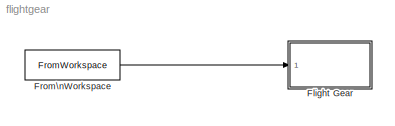
MODEL flightgear
KIND model
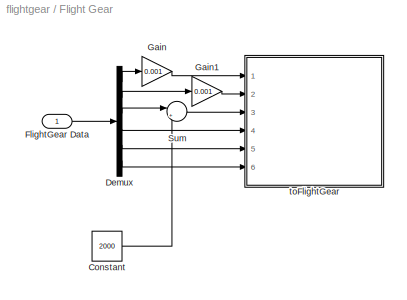
BLOCK [SubSystem] Flight Gear
  FunctionWithSeparateData = off
  MaskHideContents = off
  MinAlgLoopOccurrences = off
  Opaque = off
  Ports = [1]
  PropExecContextOutsideSubsystem = off
  RTWSystemCode = Auto
  RequestExecContextInheritance = off
  SID = 2
BLOCK [Constant] Flight Gear/Constant
  SID = 88
  Value = 2000
BLOCK [Demux] Flight Gear/Demux
  DisplayOption = bar
  Outputs = 6
  Ports = [1, 6]
  SID = 87
BLOCK [Inport] Flight Gear/FlightGear Data
  IconDisplay = Port number
  SID = 3
BLOCK [Gain] Flight Gear/Gain
  Gain = 0.001
  OutDataTypeStr = Inherit: Inherit via internal rule
  ParamDataTypeStr = Inherit: Inherit via internal rule
  SID = 90
  SaturateOnIntegerOverflow = off
BLOCK [Gain] Flight Gear/Gain1
  Gain = 0.001
  OutDataTypeStr = Inherit: Inherit via internal rule
  ParamDataTypeStr = Inherit: Inherit via internal rule
  SID = 91
  SaturateOnIntegerOverflow = off
BLOCK [Sum] Flight Gear/Sum
  IconShape = round
  InputSameDT = off
  Inputs = |++
  OutDataTypeStr = Inherit: Inherit via internal rule
  Ports = [2, 1]
  SID = 89
  SaturateOnIntegerOverflow = off
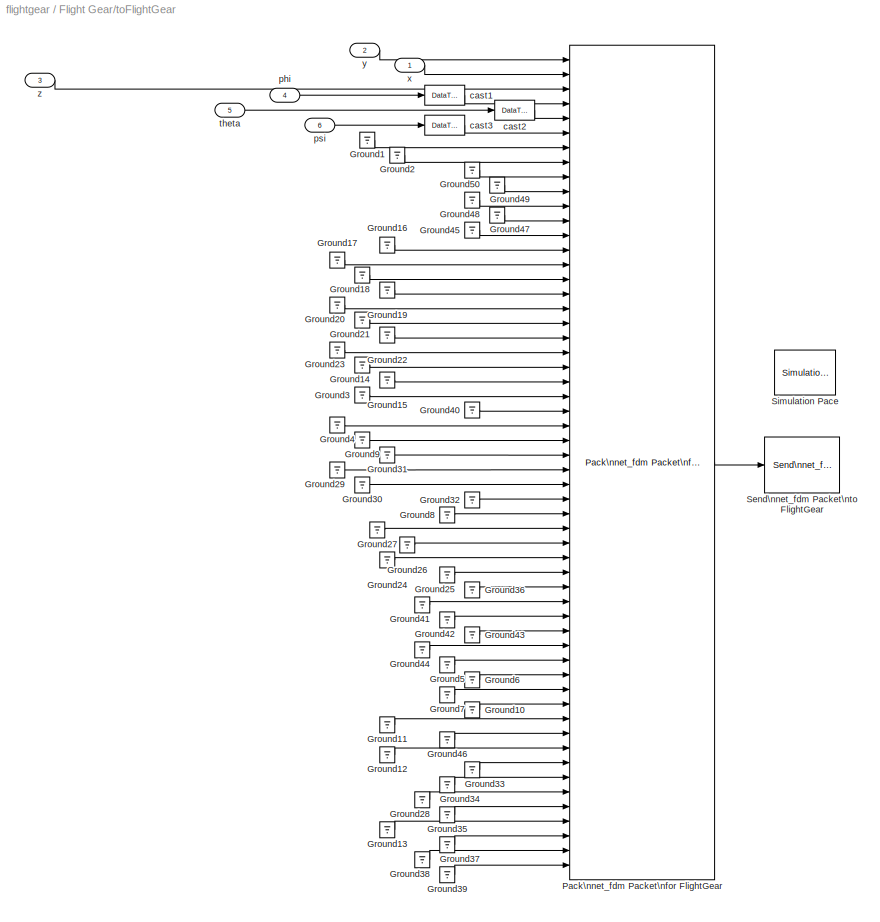
BLOCK [SubSystem] Flight Gear/toFlightGear
  FunctionWithSeparateData = off
  MaskHideContents = off
  MinAlgLoopOccurrences = off
  Opaque = off
  Ports = [6]
  PropExecContextOutsideSubsystem = off
  RTWSystemCode = Auto
  RequestExecContextInheritance = off
  SID = 15
  TreatAsAtomicUnit = on
BLOCK [Ground] Flight Gear/toFlightGear/Ground1
  SID = 18
BLOCK [Ground] Flight Gear/toFlightGear/Ground10
  SID = 19
BLOCK [Ground] Flight Gear/toFlightGear/Ground11
  SID = 20
BLOCK [Ground] Flight Gear/toFlightGear/Ground12
  SID = 21
BLOCK [Ground] Flight Gear/toFlightGear/Ground13
  SID = 22
BLOCK [Ground] Flight Gear/toFlightGear/Ground14
  SID = 23
BLOCK [Ground] Flight Gear/toFlightGear/Ground15
  SID = 24
BLOCK [Ground] Flight Gear/toFlightGear/Ground16
  SID = 25
BLOCK [Ground] Flight Gear/toFlightGear/Ground17
  SID = 26
BLOCK [Ground] Flight Gear/toFlightGear/Ground18
  SID = 27
BLOCK [Ground] Flight Gear/toFlightGear/Ground19
  SID = 28
BLOCK [Ground] Flight Gear/toFlightGear/Ground2
  SID = 29
BLOCK [Ground] Flight Gear/toFlightGear/Ground20
  SID = 30
BLOCK [Ground] Flight Gear/toFlightGear/Ground21
  SID = 31
BLOCK [Ground] Flight Gear/toFlightGear/Ground22
  SID = 32
BLOCK [Ground] Flight Gear/toFlightGear/Ground23
  SID = 33
BLOCK [Ground] Flight Gear/toFlightGear/Ground24
  SID = 34
BLOCK [Ground] Flight Gear/toFlightGear/Ground25
  SID = 35
BLOCK [Ground] Flight Gear/toFlightGear/Ground26
  SID = 36
BLOCK [Ground] Flight Gear/toFlightGear/Ground27
  SID = 37
BLOCK [Ground] Flight Gear/toFlightGear/Ground28
  SID = 38
BLOCK [Ground] Flight Gear/toFlightGear/Ground29
  SID = 39
BLOCK [Ground] Flight Gear/toFlightGear/Ground3
  SID = 40
BLOCK [Ground] Flight Gear/toFlightGear/Ground30
  SID = 41
BLOCK [Ground] Flight Gear/toFlightGear/Ground31
  SID = 42
BLOCK [Ground] Flight Gear/toFlightGear/Ground32
  SID = 43
BLOCK [Ground] Flight Gear/toFlightGear/Ground33
  SID = 44
BLOCK [Ground] Flight Gear/toFlightGear/Ground34
  SID = 45
BLOCK [Ground] Flight Gear/toFlightGear/Ground35
  SID = 46
BLOCK [Ground] Flight Gear/toFlightGear/Ground36
  SID = 47
BLOCK [Ground] Flight Gear/toFlightGear/Ground37
  SID = 48
BLOCK [Ground] Flight Gear/toFlightGear/Ground38
  SID = 49
BLOCK [Ground] Flight Gear/toFlightGear/Ground39
  SID = 50
BLOCK [Ground] Flight Gear/toFlightGear/Ground4
  SID = 51
BLOCK [Ground] Flight Gear/toFlightGear/Ground40
  SID = 52
BLOCK [Ground] Flight Gear/toFlightGear/Ground41
  SID = 53
BLOCK [Ground] Flight Gear/toFlightGear/Ground42
  SID = 54
BLOCK [Ground] Flight Gear/toFlightGear/Ground43
  SID = 55
BLOCK [Ground] Flight Gear/toFlightGear/Ground44
  SID = 56
BLOCK [Ground] Flight Gear/toFlightGear/Ground45
  SID = 57
BLOCK [Ground] Flight Gear/toFlightGear/Ground46
  SID = 58
BLOCK [Ground] Flight Gear/toFlightGear/Ground47
  SID = 59
BLOCK [Ground] Flight Gear/toFlightGear/Ground48
  SID = 60
BLOCK [Ground] Flight Gear/toFlightGear/Ground49
  SID = 61
BLOCK [Ground] Flight Gear/toFlightGear/Ground5
  SID = 62
BLOCK [Ground] Flight Gear/toFlightGear/Ground50
  SID = 63
BLOCK [Ground] Flight Gear/toFlightGear/Ground6
  SID = 64
BLOCK [Ground] Flight Gear/toFlightGear/Ground7
  SID = 65
BLOCK [Ground] Flight Gear/toFlightGear/Ground8
  SID = 66
BLOCK [Ground] Flight Gear/toFlightGear/Ground9
  SID = 67
BLOCK [Reference] Flight Gear/toFlightGear/Pack\nnet_fdm Packet\nfor FlightGear  REF=aerolibfltsims/Pack\nnet_fdm Packet\nfor FlightGear
  AttributesFormatString = FG VERSION: %<FlightGearVersion>
  FlightGearVersion = v2.0
  Ports = [56, 1]
  SID = 68
  SampleTime = 1/30
  ShowControlSurfacePositionInputs = on
  ShowEngineFuelInputs = on
  ShowEnvironmentInputs = on
  ShowLandingGearInputs = on
  ShowPositionAttitudeInputs = on
  ShowVelocityAccelerationInputs = on
  SourceBlock = aerolibfltsims/Pack\nnet_fdm Packet\nfor FlightGear
  SourceType = FlightGearPackNetFdm
BLOCK [Reference] Flight Gear/toFlightGear/Send\nnet_fdm Packet\nto FlightGear  REF=aerolibfltsims/Send\nnet_fdm Packet\nto FlightGear
  DestinationIpAddress = 127.0.0.1
  DestinationPort = 5502
  LocalIpPort = -1
  Ports = [1]
  SID = 69
  SampleTime = 1/30
  SourceBlock = aerolibfltsims/Send\nnet_fdm Packet\nto FlightGear
  SourceType = FlightGearSendNetFdm
  varLen = off
BLOCK [Reference] Flight Gear/toFlightGear/Simulation Pace  REF=aerolibanimutils/Simulation Pace
  AttributesFormatString = %<SimulationPace> sec/sec
  OutputPaceError = off
  Ports = []
  SID = 70
  SampleTime = 0.001
  SimulationPace = 1
  SleepMode = MATLAB Thread
  SourceBlock = aerolibanimutils/Simulation Pace
  SourceType = Simulation Pace
BLOCK [DataTypeConversion] Flight Gear/toFlightGear/cast1
  OutDataTypeStr = single
  RndMeth = Floor
  SID = 71
BLOCK [DataTypeConversion] Flight Gear/toFlightGear/cast2
  OutDataTypeStr = single
  RndMeth = Floor
  SID = 72
BLOCK [DataTypeConversion] Flight Gear/toFlightGear/cast3
  OutDataTypeStr = single
  RndMeth = Floor
  SID = 73
BLOCK [Inport] Flight Gear/toFlightGear/phi
  IconDisplay = Port number
  Port = 4
  SID = 83
BLOCK [Inport] Flight Gear/toFlightGear/psi
  IconDisplay = Port number
  Port = 6
  SID = 85
BLOCK [Inport] Flight Gear/toFlightGear/theta
  IconDisplay = Port number
  Port = 5
  SID = 84
BLOCK [Inport] Flight Gear/toFlightGear/x
  IconDisplay = Port number
  SID = 81
BLOCK [Inport] Flight Gear/toFlightGear/y
  IconDisplay = Port number
  Port = 2
  SID = 82
BLOCK [Inport] Flight Gear/toFlightGear/z
  IconDisplay = Port number
  Port = 3
  SID = 80
BLOCK [FromWorkspace] From\nWorkspace
  SID = 86
  SampleTime = 0
  VariableName = delta_and_eulr
  ZeroCross = on
LINE Flight Gear/Constant:1 -> Flight Gear/Sum:2
LINE Flight Gear/Demux:1 -> Flight Gear/Gain:1
LINE Flight Gear/Demux:2 -> Flight Gear/Gain1:1
LINE Flight Gear/Demux:3 -> Flight Gear/Sum:1
LINE Flight Gear/Demux:4 -> Flight Gear/toFlightGear:4
LINE Flight Gear/Demux:5 -> Flight Gear/toFlightGear:5
LINE Flight Gear/Demux:6 -> Flight Gear/toFlightGear:6
LINE Flight Gear/FlightGear Data:1 -> Flight Gear/Demux:1
LINE Flight Gear/Gain1:1 -> Flight Gear/toFlightGear:2
LINE Flight Gear/Gain:1 -> Flight Gear/toFlightGear:1
LINE Flight Gear/Sum:1 -> Flight Gear/toFlightGear:3
LINE Flight Gear/toFlightGear/Ground10:1 -> Flight Gear/toFlightGear/Pack\nnet_fdm Packet\nfor FlightGear:45
LINE Flight Gear/toFlightGear/Ground11:1 -> Flight Gear/toFlightGear/Pack\nnet_fdm Packet\nfor FlightGear:46
LINE Flight Gear/toFlightGear/Ground12:1 -> Flight Gear/toFlightGear/Pack\nnet_fdm Packet\nfor FlightGear:48
LINE Flight Gear/toFlightGear/Ground13:1 -> Flight Gear/toFlightGear/Pack\nnet_fdm Packet\nfor FlightGear:53
LINE Flight Gear/toFlightGear/Ground14:1 -> Flight Gear/toFlightGear/Pack\nnet_fdm Packet\nfor FlightGear:22
LINE Flight Gear/toFlightGear/Ground15:1 -> Flight Gear/toFlightGear/Pack\nnet_fdm Packet\nfor FlightGear:23
LINE Flight Gear/toFlightGear/Ground16:1 -> Flight Gear/toFlightGear/Pack\nnet_fdm Packet\nfor FlightGear:14
LINE Flight Gear/toFlightGear/Ground17:1 -> Flight Gear/toFlightGear/Pack\nnet_fdm Packet\nfor FlightGear:15
LINE Flight Gear/toFlightGear/Ground18:1 -> Flight Gear/toFlightGear/Pack\nnet_fdm Packet\nfor FlightGear:16
LINE Flight Gear/toFlightGear/Ground19:1 -> Flight Gear/toFlightGear/Pack\nnet_fdm Packet\nfor FlightGear:17
LINE Flight Gear/toFlightGear/Ground1:1 -> Flight Gear/toFlightGear/Pack\nnet_fdm Packet\nfor FlightGear:7
LINE Flight Gear/toFlightGear/Ground20:1 -> Flight Gear/toFlightGear/Pack\nnet_fdm Packet\nfor FlightGear:18
LINE Flight Gear/toFlightGear/Ground21:1 -> Flight Gear/toFlightGear/Pack\nnet_fdm Packet\nfor FlightGear:19
LINE Flight Gear/toFlightGear/Ground22:1 -> Flight Gear/toFlightGear/Pack\nnet_fdm Packet\nfor FlightGear:20
LINE Flight Gear/toFlightGear/Ground23:1 -> Flight Gear/toFlightGear/Pack\nnet_fdm Packet\nfor FlightGear:21
LINE Flight Gear/toFlightGear/Ground24:1 -> Flight Gear/toFlightGear/Pack\nnet_fdm Packet\nfor FlightGear:35
LINE Flight Gear/toFlightGear/Ground25:1 -> Flight Gear/toFlightGear/Pack\nnet_fdm Packet\nfor FlightGear:36
LINE Flight Gear/toFlightGear/Ground26:1 -> Flight Gear/toFlightGear/Pack\nnet_fdm Packet\nfor FlightGear:34
LINE Flight Gear/toFlightGear/Ground27:1 -> Flight Gear/toFlightGear/Pack\nnet_fdm Packet\nfor FlightGear:33
LINE Flight Gear/toFlightGear/Ground28:1 -> Flight Gear/toFlightGear/Pack\nnet_fdm Packet\nfor FlightGear:51
LINE Flight Gear/toFlightGear/Ground29:1 -> Flight Gear/toFlightGear/Pack\nnet_fdm Packet\nfor FlightGear:29
LINE Flight Gear/toFlightGear/Ground2:1 -> Flight Gear/toFlightGear/Pack\nnet_fdm Packet\nfor FlightGear:8
LINE Flight Gear/toFlightGear/Ground30:1 -> Flight Gear/toFlightGear/Pack\nnet_fdm Packet\nfor FlightGear:30
LINE Flight Gear/toFlightGear/Ground31:1 -> Flight Gear/toFlightGear/Pack\nnet_fdm Packet\nfor FlightGear:28
LINE Flight Gear/toFlightGear/Ground32:1 -> Flight Gear/toFlightGear/Pack\nnet_fdm Packet\nfor FlightGear:31
LINE Flight Gear/toFlightGear/Ground33:1 -> Flight Gear/toFlightGear/Pack\nnet_fdm Packet\nfor FlightGear:49
LINE Flight Gear/toFlightGear/Ground34:1 -> Flight Gear/toFlightGear/Pack\nnet_fdm Packet\nfor FlightGear:50
LINE Flight Gear/toFlightGear/Ground35:1 -> Flight Gear/toFlightGear/Pack\nnet_fdm Packet\nfor FlightGear:52
LINE Flight Gear/toFlightGear/Ground36:1 -> Flight Gear/toFlightGear/Pack\nnet_fdm Packet\nfor FlightGear:37
LINE Flight Gear/toFlightGear/Ground37:1 -> Flight Gear/toFlightGear/Pack\nnet_fdm Packet\nfor FlightGear:54
LINE Flight Gear/toFlightGear/Ground38:1 -> Flight Gear/toFlightGear/Pack\nnet_fdm Packet\nfor FlightGear:55
LINE Flight Gear/toFlightGear/Ground39:1 -> Flight Gear/toFlightGear/Pack\nnet_fdm Packet\nfor FlightGear:56
LINE Flight Gear/toFlightGear/Ground3:1 -> Flight Gear/toFlightGear/Pack\nnet_fdm Packet\nfor FlightGear:24
LINE Flight Gear/toFlightGear/Ground40:1 -> Flight Gear/toFlightGear/Pack\nnet_fdm Packet\nfor FlightGear:25
LINE Flight Gear/toFlightGear/Ground41:1 -> Flight Gear/toFlightGear/Pack\nnet_fdm Packet\nfor FlightGear:38
LINE Flight Gear/toFlightGear/Ground42:1 -> Flight Gear/toFlightGear/Pack\nnet_fdm Packet\nfor FlightGear:39
LINE Flight Gear/toFlightGear/Ground43:1 -> Flight Gear/toFlightGear/Pack\nnet_fdm Packet\nfor FlightGear:40
LINE Flight Gear/toFlightGear/Ground44:1 -> Flight Gear/toFlightGear/Pack\nnet_fdm Packet\nfor FlightGear:41
LINE Flight Gear/toFlightGear/Ground45:1 -> Flight Gear/toFlightGear/Pack\nnet_fdm Packet\nfor FlightGear:13
LINE Flight Gear/toFlightGear/Ground46:1 -> Flight Gear/toFlightGear/Pack\nnet_fdm Packet\nfor FlightGear:47
LINE Flight Gear/toFlightGear/Ground47:1 -> Flight Gear/toFlightGear/Pack\nnet_fdm Packet\nfor FlightGear:12
LINE Flight Gear/toFlightGear/Ground48:1 -> Flight Gear/toFlightGear/Pack\nnet_fdm Packet\nfor FlightGear:11
LINE Flight Gear/toFlightGear/Ground49:1 -> Flight Gear/toFlightGear/Pack\nnet_fdm Packet\nfor FlightGear:10
LINE Flight Gear/toFlightGear/Ground4:1 -> Flight Gear/toFlightGear/Pack\nnet_fdm Packet\nfor FlightGear:26
LINE Flight Gear/toFlightGear/Ground50:1 -> Flight Gear/toFlightGear/Pack\nnet_fdm Packet\nfor FlightGear:9
LINE Flight Gear/toFlightGear/Ground5:1 -> Flight Gear/toFlightGear/Pack\nnet_fdm Packet\nfor FlightGear:42
LINE Flight Gear/toFlightGear/Ground6:1 -> Flight Gear/toFlightGear/Pack\nnet_fdm Packet\nfor FlightGear:43
LINE Flight Gear/toFlightGear/Ground7:1 -> Flight Gear/toFlightGear/Pack\nnet_fdm Packet\nfor FlightGear:44
LINE Flight Gear/toFlightGear/Ground8:1 -> Flight Gear/toFlightGear/Pack\nnet_fdm Packet\nfor FlightGear:32
LINE Flight Gear/toFlightGear/Ground9:1 -> Flight Gear/toFlightGear/Pack\nnet_fdm Packet\nfor FlightGear:27
LINE Flight Gear/toFlightGear/Pack\nnet_fdm Packet\nfor FlightGear:1 -> Flight Gear/toFlightGear/Send\nnet_fdm Packet\nto FlightGear:1
LINE Flight Gear/toFlightGear/cast1:1 -> Flight Gear/toFlightGear/Pack\nnet_fdm Packet\nfor FlightGear:4
LINE Flight Gear/toFlightGear/cast2:1 -> Flight Gear/toFlightGear/Pack\nnet_fdm Packet\nfor FlightGear:5
LINE Flight Gear/toFlightGear/cast3:1 -> Flight Gear/toFlightGear/Pack\nnet_fdm Packet\nfor FlightGear:6
LINE Flight Gear/toFlightGear/phi:1 -> Flight Gear/toFlightGear/cast1:1
LINE Flight Gear/toFlightGear/psi:1 -> Flight Gear/toFlightGear/cast3:1
LINE Flight Gear/toFlightGear/theta:1 -> Flight Gear/toFlightGear/cast2:1
LINE Flight Gear/toFlightGear/x:1 -> Flight Gear/toFlightGear/Pack\nnet_fdm Packet\nfor FlightGear:2
LINE Flight Gear/toFlightGear/y:1 -> Flight Gear/toFlightGear/Pack\nnet_fdm Packet\nfor FlightGear:1
LINE Flight Gear/toFlightGear/z:1 -> Flight Gear/toFlightGear/Pack\nnet_fdm Packet\nfor FlightGear:3
LINE From\nWorkspace:1 -> Flight Gear:1
